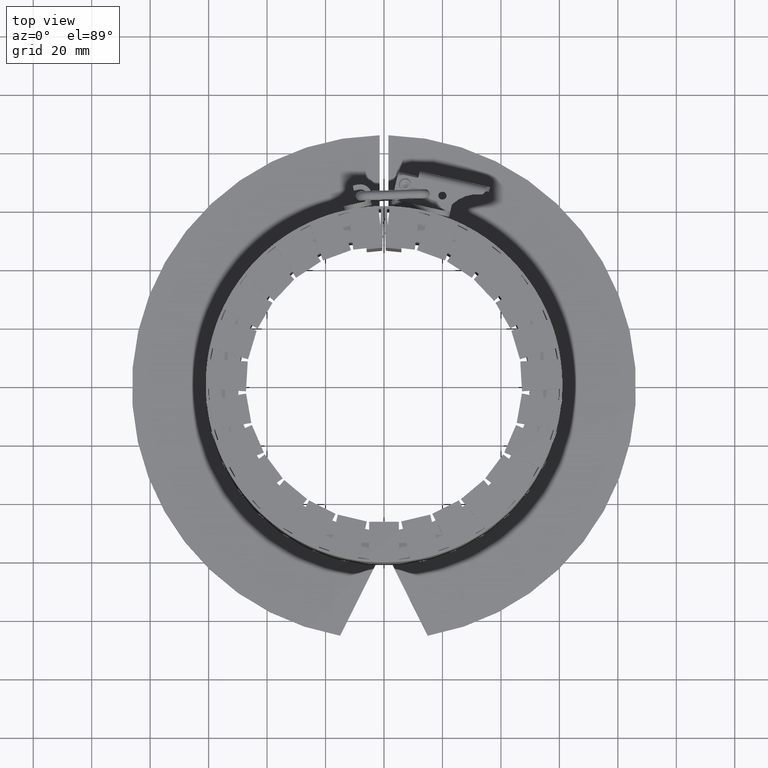
[diagram: clean part render]
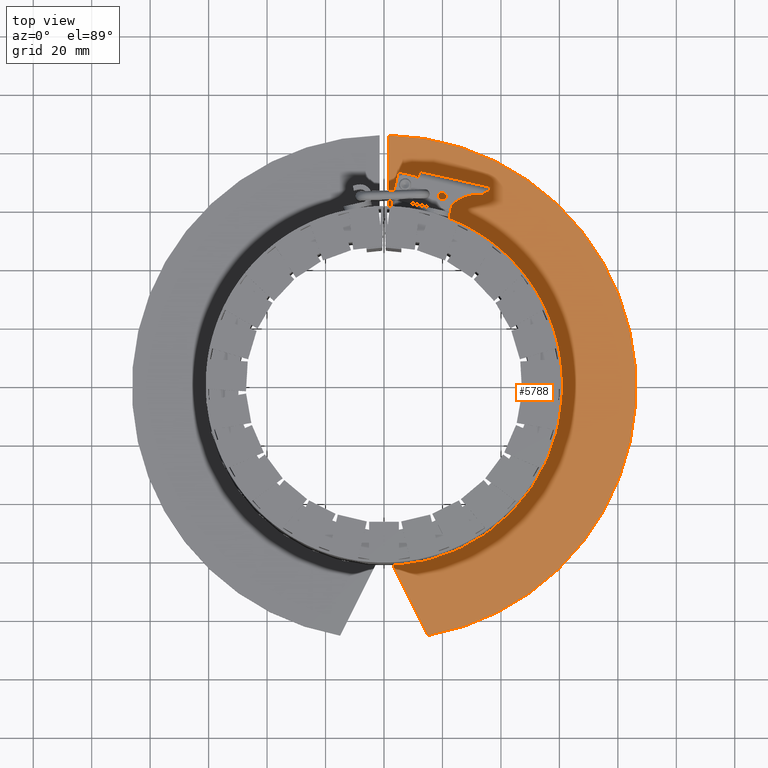
[diagram: same view with one face highlighted and labeled with its STEP entity id]
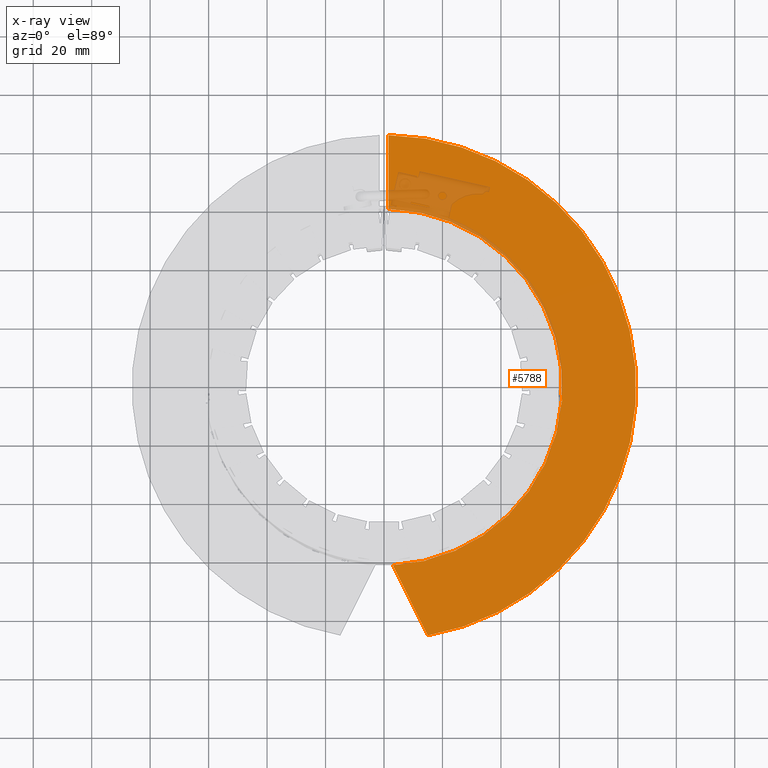
[diagram: x-ray of the same camera — body ghosted, the highlighted face saturated]
A machine part, top view. The second image highlights one B-rep face of the part: STEP entity #5788.
The next image is the same camera in x-ray: the body ghosted, the highlighted face saturated — about 7% of this face is hidden behind the body in this view.
In plain terms, the highlighted planar face has unit normal (0, 0, 1).
Its self-contained STEP definition (entity closure, byte-faithful):
#5654=CARTESIAN_POINT('',(14.973042880722787,-84.940393729320803,-26.949999999999996));
#5655=VERTEX_POINT('',#5654);
#5656=CARTESIAN_POINT('',(3.000000000000039,-60.926184846911269,-26.949999999999996));
#5657=VERTEX_POINT('',#5656);
#5658=CARTESIAN_POINT('',(14.973042880722787,-84.940393729320803,-26.949999999999996));
#5659=DIRECTION('',(-0.446197813109809,0.894934361602025,0.0));
#5660=VECTOR('',#5659,26.833486245205311);
#5661=LINE('',#5658,#5660);
#5662=EDGE_CURVE('',#5655,#5657,#5661,.T.);
#5694=CARTESIAN_POINT('',(1.499999999999962,60.981554588252351,-26.949999999999996));
#5695=VERTEX_POINT('',#5694);
#5696=CARTESIAN_POINT('',(-2.114194E-017,7.771043E-033,-26.949999999999996));
#5697=DIRECTION('',(-1.704537E-020,3.461698E-019,1.0));
#5698=DIRECTION('',(0.049180327868853,-0.998789915523135,3.465892E-019));
#5699=AXIS2_PLACEMENT_3D('',#5696,#5697,#5698);
#5700=CIRCLE('',#5699,61.0);
#5701=EDGE_CURVE('',#5657,#5695,#5700,.T.);
#5727=CARTESIAN_POINT('',(1.499999999999945,86.236955535315602,-26.949999999999996));
#5728=VERTEX_POINT('',#5727);
#5729=CARTESIAN_POINT('',(1.499999999999962,60.981554588252351,-26.949999999999996));
#5730=DIRECTION('',(0.0,1.0,0.0));
#5731=VECTOR('',#5730,25.255400947063251);
#5732=LINE('',#5729,#5731);
#5733=EDGE_CURVE('',#5695,#5728,#5732,.T.);
#5758=CARTESIAN_POINT('',(-2.114194E-017,7.771043E-033,-26.949999999999996));
#5759=DIRECTION('',(2.123858E-019,-1.204841E-018,-1.0));
#5760=DIRECTION('',(-0.1736004971678,0.984816159180531,-1.223417E-018));
#5761=AXIS2_PLACEMENT_3D('',#5758,#5759,#5760);
#5762=CIRCLE('',#5761,86.25);
#5763=EDGE_CURVE('',#5728,#5655,#5762,.T.);
#5777=CARTESIAN_POINT('',(41.608320073290805,2.124449234080355,-26.949999999999989));
#5778=DIRECTION('',(0.0,0.0,1.0));
#5779=DIRECTION('',(1.0,0.0,0.0));
#5780=AXIS2_PLACEMENT_3D('',#5777,#5778,#5779);
#5781=PLANE('',#5780);
#5782=ORIENTED_EDGE('',*,*,#5662,.F.);
#5783=ORIENTED_EDGE('',*,*,#5763,.F.);
#5784=ORIENTED_EDGE('',*,*,#5733,.F.);
#5785=ORIENTED_EDGE('',*,*,#5701,.F.);
#5786=EDGE_LOOP('',(#5782,#5783,#5784,#5785));
#5787=FACE_OUTER_BOUND('',#5786,.T.);
#5788=ADVANCED_FACE('',(#5787),#5781,.T.);